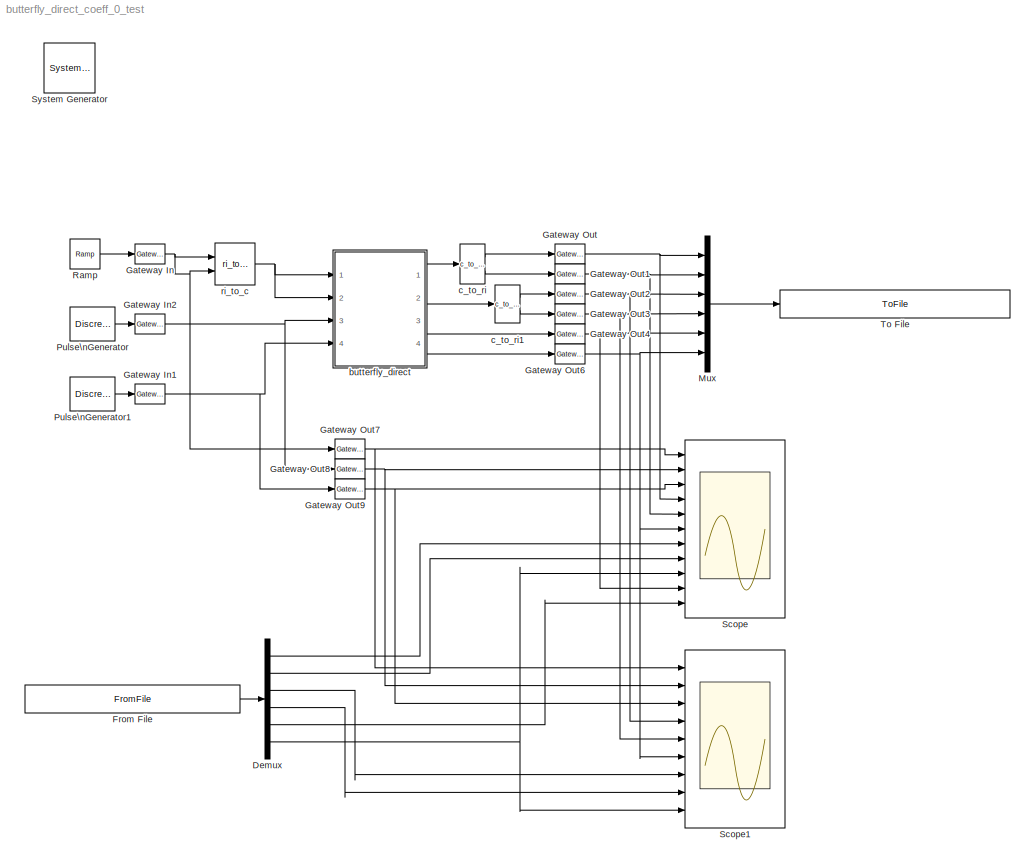
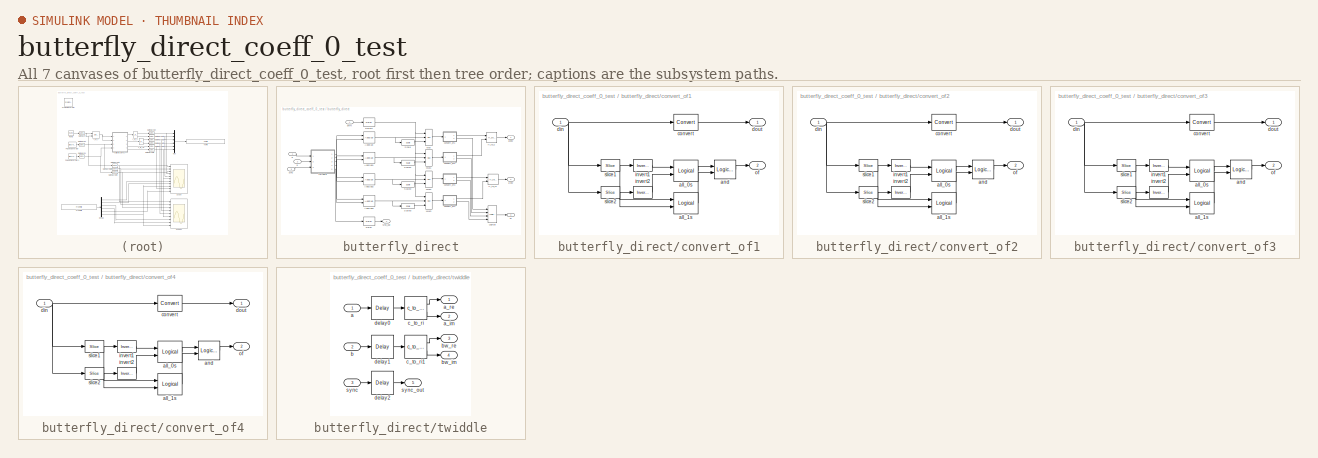
[diagram: thumbnail index - all 7 canvases of the model, root first then tree order]
MODEL butterfly_direct_coeff_0_test
KIND model
BLOCK [Reference]  System Generator  REF=xbsIndex_r4/ System Generator
  AttributesFormatString = System\\nGenerator
  FunctionWithSeparateData = off
  Ports = []
  RTWMemSecDataConstants = Inherit from model
  RTWMemSecDataInternal = Inherit from model
  RTWMemSecDataParameters = Inherit from model
  RTWMemSecFuncExecute = Inherit from model
  RTWMemSecFuncInitTerm = Inherit from model
  ShowPortLabels = FromPortIcon
  SourceBlock = xbsIndex_r4/ System Generator
  SourceType = Xilinx System Generator Block
  SystemSampleTime = -1
  Tag = genX
  UserData = DataTag0
  UserDataPersistent = on
  block_type = sysgen
  block_version = 10.1.1
  clock_wrapper = Clock Enables
  core_generation = According to Block Masks
  dbl_ovrd = According to Block Masks
  dcm_input_clock_period = 100
  deprecated_control = off
  directory = ./netlist
  eval_field = 0
  has_advanced_control = 0
  incr_netlist = off
  infoedit = System Generator
  package = ff668
  part = xc4vsx35
  run_coregen = off
  sg_icon_stat = 51,50,-1,-1,red,beige,0,07734,right
  sg_mask_display = fprintf('','COMMENT: begin icon graphics');\npatch([0 51 51 0 ],[0 0 50 50 ],[0.93 0.92 0.86]);\npatch([12 4 16 4 12 25 29 33 47 36 25 17 29 17 25 36 47 33 29 25 12 ],[5 13 25 37 45 45 41 45 45 34 45 37 25 13 5 16 5 5 9 5 5 ],[0.6 0.2 0.25]);\nplot([0 51 51 0 0 ],[0 0 50 50 0 ]);\nfprintf('','COMMENT: end icon graphics');\nfprintf('','COMMENT: begin icon text');\nfprintf('','COMMENT: end icon text...<+5ch>
  sggui_pos = -1,-1,-1,-1
  simulink_period = 1
  speed = -10
  synthesis_tool = XST
  sysclk_period = 100
  testbench = off
  trim_vbits = Everywhere in SubSystem
  xilinxfamily = Virtex4
BLOCK [Demux] Demux
  DisplayOption = bar
  Outputs = 6
  Ports = [1, 6]
BLOCK [FromFile] From File
  FileName = butterfly_direct_coeff_0_test_reference.mat
  SampleTime = 1
BLOCK [Reference] Gateway In  REF=xbsIndex_r4/Gateway In
  LOCs = {}
  Ports = [1, 1]
  SourceBlock = xbsIndex_r4/Gateway In
  SourceType = Xilinx Gateway In Block
  arith_type = Signed  (2's comp)
  bin_pt = 4
  block_type = gatewayin
  block_version = 10.1.1
  dbl_ovrd = off
  has_advanced_control = 0
  hdl_port = on
  infoedit = Gateway in block.  Converts inputs of type Simulink integer, double and fixed point to  Xilinx fixed point type.<P><P>Hardware notes:  In hardware these blocks become top level input ports.  <repeated x3 — deduplicated; at blocks: Gateway In, Gateway In1, Gateway In2>
  locs_specified = off
  n_bits = 5
  overflow = Wrap
  period = 1
  quantization = Truncate
  sg_icon_stat = 30,20,1,1,white,yellow,0,00d3666e,right,
  sg_mask_display = fprintf('','COMMENT: begin icon graphics');\npatch([0 1 1 0 ],[0 0 1 1 ],[0.95 0.93 0.65]);\npatch([0.3 0.2 0.366667 0.2 0.3 0.466667 0.5 0.533333 0.733333 0.6 0.466667 0.366667 0.533333 0.366667 0.466667 0.6 0.733333 0.533333 0.5 0.466667 0.3 ],[0.1 0.25 0.5 0.75 0.9 0.9 0.85 0.9 0.9 0.7 0.9 0.75 0.5 0.25 0.1 0.3 0.1 0.1 0.15 0.1 0.1 ],[0.98 0.96 0.92]);\nplot([0 1 1 0 0 ],[0 0 1 1 0 ]);\nfprintf...<+241ch>  <repeated x3 — deduplicated; at blocks: Gateway In, Gateway In1, Gateway In2>
  sggui_pos = 20,20,407,458
  timing_constraint = None
  xl_area = [0,0,0,0,0,0,0]
  xl_use_area = off
BLOCK [Reference] Gateway In1  REF=xbsIndex_r4/Gateway In
  LOCs = {}
  Ports = [1, 1]
  SourceBlock = xbsIndex_r4/Gateway In
  SourceType = Xilinx Gateway In Block
  arith_type = Boolean
  bin_pt = 14
  block_type = gatewayin
  block_version = 10.1.1
  dbl_ovrd = off
  has_advanced_control = 0
  hdl_port = on
  locs_specified = off
  n_bits = 16
  overflow = Saturate
  period = 1
  quantization = Round  (unbiased: +/- Inf)
  sg_icon_stat = 30,20,1,1,white,yellow,0,00d3666e,right,
  sggui_pos = 20,20,407,458
  timing_constraint = None
  xl_area = [0,0,0,0,0,0,0]
  xl_use_area = off
BLOCK [Reference] Gateway In2  REF=xbsIndex_r4/Gateway In
  LOCs = {}
  Ports = [1, 1]
  SourceBlock = xbsIndex_r4/Gateway In
  SourceType = Xilinx Gateway In Block
  arith_type = Boolean
  bin_pt = 14
  block_type = gatewayin
  block_version = 10.1.1
  dbl_ovrd = off
  has_advanced_control = 0
  hdl_port = on
  locs_specified = off
  n_bits = 16
  overflow = Saturate
  period = 1
  quantization = Round  (unbiased: +/- Inf)
  sg_icon_stat = 30,20,1,1,white,yellow,0,00d3666e,right,
  sggui_pos = 20,20,407,458
  timing_constraint = None
  xl_area = [0,0,0,0,0,0,0]
  xl_use_area = off
BLOCK [Reference] Gateway Out  REF=xbsIndex_r4/Gateway Out
  LOCs = {}
  Ports = [1, 1]
  SourceBlock = xbsIndex_r4/Gateway Out
  SourceType = Xilinx Gateway Out Block
  block_type = gatewayout
  block_version = 10.1.1
  has_advanced_control = 0
  hdl_port = on
  infoedit = Gateway out block.  Converts Xilinx fixed point inputs into ouputs of type Simulink integer, double, or fixed point.<P><P>Hardware notes:  In hardware these blocks become top level output ports or are discarded, depending on how they are configured.  <repeated x9 — deduplicated; at blocks: Gateway Out, Gateway Out1, Gateway Out2, Gateway Out3, Gateway Out4, Gateway Out6, Gateway Out7, Gateway Out8, Gateway Out9>
  locs_specified = off
  sg_icon_stat = 30,20,1,1,white,yellow,0,cc31b7ac,right,
  sg_mask_display = fprintf('','COMMENT: begin icon graphics');\npatch([0 1 1 0 ],[0 0 1 1 ],[0.95 0.93 0.65]);\npatch([0.3 0.2 0.366667 0.2 0.3 0.466667 0.5 0.533333 0.733333 0.6 0.466667 0.366667 0.533333 0.366667 0.466667 0.6 0.733333 0.533333 0.5 0.466667 0.3 ],[0.1 0.25 0.5 0.75 0.9 0.9 0.85 0.9 0.9 0.7 0.9 0.75 0.5 0.25 0.1 0.3 0.1 0.1 0.15 0.1 0.1 ],[0.98 0.96 0.92]);\nplot([0 1 1 0 0 ],[0 0 1 1 0 ]);\nfprintf...<+242ch>  <repeated x9 — deduplicated; at blocks: Gateway Out, Gateway Out1, Gateway Out2, Gateway Out3, Gateway Out4, Gateway Out6, Gateway Out7, Gateway Out8, Gateway Out9>
  sggui_pos = 20,20,389,431
  timing_constraint = None
  xl_area = [0,0,0,0,0,0,0]
  xl_use_area = off
BLOCK [Reference] Gateway Out1  REF=xbsIndex_r4/Gateway Out
  LOCs = {}
  Ports = [1, 1]
  SourceBlock = xbsIndex_r4/Gateway Out
  SourceType = Xilinx Gateway Out Block
  block_type = gatewayout
  block_version = 10.1.1
  has_advanced_control = 0
  hdl_port = on
  locs_specified = off
  sg_icon_stat = 30,20,1,1,white,yellow,0,cc31b7ac,right,
  sggui_pos = 20,20,389,431
  timing_constraint = None
  xl_area = [0,0,0,0,0,0,0]
  xl_use_area = off
BLOCK [Reference] Gateway Out2  REF=xbsIndex_r4/Gateway Out
  LOCs = {}
  Ports = [1, 1]
  SourceBlock = xbsIndex_r4/Gateway Out
  SourceType = Xilinx Gateway Out Block
  block_type = gatewayout
  block_version = 10.1.1
  has_advanced_control = 0
  hdl_port = on
  locs_specified = off
  sg_icon_stat = 30,20,1,1,white,yellow,0,cc31b7ac,right,
  sggui_pos = 20,20,389,431
  timing_constraint = None
  xl_area = [0,0,0,0,0,0,0]
  xl_use_area = off
BLOCK [Reference] Gateway Out3  REF=xbsIndex_r4/Gateway Out
  LOCs = {}
  Ports = [1, 1]
  SourceBlock = xbsIndex_r4/Gateway Out
  SourceType = Xilinx Gateway Out Block
  block_type = gatewayout
  block_version = 10.1.1
  has_advanced_control = 0
  hdl_port = on
  locs_specified = off
  sg_icon_stat = 30,20,1,1,white,yellow,0,cc31b7ac,right,
  sggui_pos = 20,20,389,431
  timing_constraint = None
  xl_area = [0,0,0,0,0,0,0]
  xl_use_area = off
BLOCK [Reference] Gateway Out4  REF=xbsIndex_r4/Gateway Out
  LOCs = {}
  Ports = [1, 1]
  SourceBlock = xbsIndex_r4/Gateway Out
  SourceType = Xilinx Gateway Out Block
  block_type = gatewayout
  block_version = 10.1.1
  has_advanced_control = 0
  hdl_port = on
  locs_specified = off
  sg_icon_stat = 30,20,1,1,white,yellow,0,cc31b7ac,right,
  sggui_pos = 20,20,389,431
  timing_constraint = None
  xl_area = [0,0,0,0,0,0,0]
  xl_use_area = off
BLOCK [Reference] Gateway Out6  REF=xbsIndex_r4/Gateway Out
  LOCs = {}
  Ports = [1, 1]
  SourceBlock = xbsIndex_r4/Gateway Out
  SourceType = Xilinx Gateway Out Block
  block_type = gatewayout
  block_version = 10.1.1
  has_advanced_control = 0
  hdl_port = on
  locs_specified = off
  sg_icon_stat = 30,20,1,1,white,yellow,0,cc31b7ac,right,
  sggui_pos = 20,20,389,431
  timing_constraint = None
  xl_area = [0,0,0,0,0,0,0]
  xl_use_area = off
BLOCK [Reference] Gateway Out7  REF=xbsIndex_r4/Gateway Out
  LOCs = {}
  Ports = [1, 1]
  SourceBlock = xbsIndex_r4/Gateway Out
  SourceType = Xilinx Gateway Out Block
  block_type = gatewayout
  block_version = 10.1.1
  has_advanced_control = 0
  hdl_port = on
  locs_specified = off
  sg_icon_stat = 30,20,1,1,white,yellow,0,cc31b7ac,right,
  sggui_pos = 20,20,389,431
  timing_constraint = None
  xl_area = [0,0,0,0,0,0,0]
  xl_use_area = off
BLOCK [Reference] Gateway Out8  REF=xbsIndex_r4/Gateway Out
  LOCs = {}
  Ports = [1, 1]
  SourceBlock = xbsIndex_r4/Gateway Out
  SourceType = Xilinx Gateway Out Block
  block_type = gatewayout
  block_version = 10.1.1
  has_advanced_control = 0
  hdl_port = on
  locs_specified = off
  sg_icon_stat = 30,20,1,1,white,yellow,0,cc31b7ac,right,
  sggui_pos = 20,20,389,431
  timing_constraint = None
  xl_area = [0,0,0,0,0,0,0]
  xl_use_area = off
BLOCK [Reference] Gateway Out9  REF=xbsIndex_r4/Gateway Out
  LOCs = {}
  Ports = [1, 1]
  SourceBlock = xbsIndex_r4/Gateway Out
  SourceType = Xilinx Gateway Out Block
  block_type = gatewayout
  block_version = 10.1.1
  has_advanced_control = 0
  hdl_port = on
  locs_specified = off
  sg_icon_stat = 30,20,1,1,white,yellow,0,cc31b7ac,right,
  sggui_pos = 20,20,389,431
  timing_constraint = None
  xl_area = [0,0,0,0,0,0,0]
  xl_use_area = off
BLOCK [Mux] Mux
  DisplayOption = bar
  Inputs = 6
  Ports = [6, 1]
BLOCK [DiscretePulseGenerator] Pulse\nGenerator
  Period = 32*4
  PhaseDelay = 11
  Ports = [0, 1]
BLOCK [DiscretePulseGenerator] Pulse\nGenerator1
  Period = 32*4
  PhaseDelay = 33
  Ports = [0, 1]
  PulseWidth = 32*3
BLOCK [Reference] Ramp  REF=simulink/Sources/Ramp
  FunctionWithSeparateData = off
  Ports = [0, 1]
  RTWMemSecDataConstants = Inherit from model
  RTWMemSecDataInternal = Inherit from model
  RTWMemSecDataParameters = Inherit from model
  RTWMemSecFuncExecute = Inherit from model
  RTWMemSecFuncInitTerm = Inherit from model
  ShowPortLabels = FromPortIcon
  SourceBlock = simulink/Sources/Ramp
  SourceType = Ramp
  SystemSampleTime = -1
  VectorParams1D = on
  X0 = 0
  slope = 1/32
  start = 0
BLOCK [Scope] Scope
  DataFormat = StructureWithTime
  Floating = off
  NumInputPorts = 11
  Ports = [11]
  SampleTime = 0
  YMax = 5~5~5~5~5~5~5~5~5~5~5
  YMin = -5~-5~-5~-5~-5~-5~-5~-5~-5~-5~-5
  ZoomMode = xonly
BLOCK [Scope] Scope1
  DataFormat = StructureWithTime
  Floating = off
  NumInputPorts = 9
  Ports = [9]
  SampleTime = 0
  SaveName = ScopeData1
  YMax = 5~5~5~5~5~5~5~5~5
  YMin = -5~-5~-5~-5~-5~-5~-5~-5~-5
BLOCK [ToFile] To File
  Filename = butterfly_direct_coeff_0_test_output.mat
  MatrixName = output
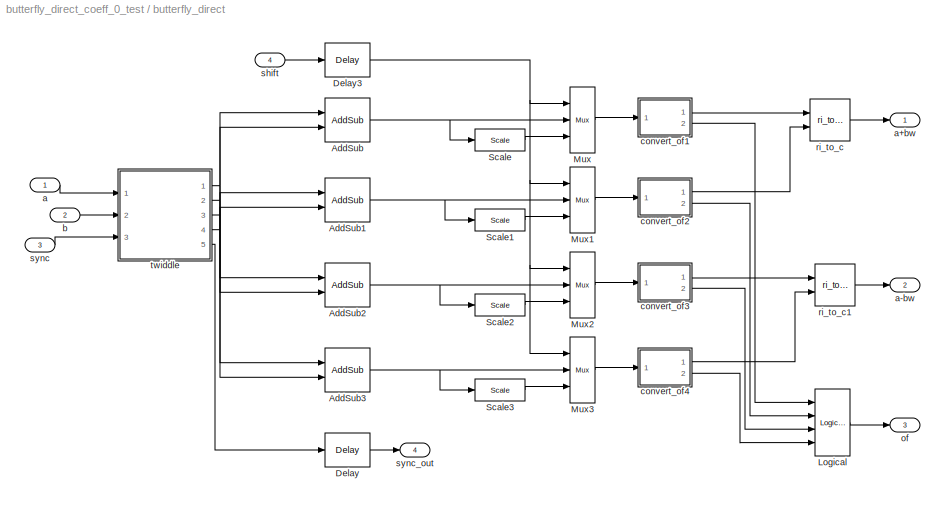
BLOCK [SubSystem] butterfly_direct
  AncestorBlock = casper_library_ffts/butterfly_direct
  AttributesFormatString = twiddle_coeff_0\ncoeffs in slices
  FunctionWithSeparateData = off
  MaskCallbackString = ||%coeffs = eval(get_param(gcb,'Coeffs'));\n%visibs = get_param(gcb,'MaskVisibilities');\n%if length(coeffs) == 1,\n%    visibs{4} = 'off'; visibs{5} = 'off';\n%    visibs{6} = 'off'; \n%else\n%    visibs{4} = 'on';\n%    visibs{5} = 'on'; visibs{6} = 'on';\n%end    \n%set_param(gcb, 'MaskVisibilities', visibs);|%coeffs = eval(get_param(gcb,'Coeffs'));\n%visibs = get_param(gcb,'MaskVisibilities');...<+812ch>
  MaskEnableString = on,on,on,on,on,on,on,on,on,on,on,on,on,on,on,on,on,on
  MaskHideContents = off
  MaskIconFrame = on
  MaskIconOpaque = on
  MaskIconRotate = none
  MaskIconUnits = autoscale
  MaskInitialization = butterfly_direct_init(gcb,...\n              'biplex', biplex,...\n              'FFTSize', FFTSize,...\n              'Coeffs', Coeffs,...\n              'coeff_bit_width', coeff_bit_width,...\n              'StepPeriod', StepPeriod,...\n              'input_bit_width', input_bit_width,...\n              'add_latency', add_latency,...\n              'mult_latency', mult_latency,...\n             ...<+428ch>
  MaskPromptString = Used in biplex FFT|Size of FFT: (2^?)|Coefficients: (0 to 2^(FFTSize-1)-1)|Coefficient Step Period: (2^?)|Implement coefficients in BRAM|Coefficient Bit Width|Input/Output Bit Width:|BRAM Latency|Add Latency|Mult Latency|Convert latency|Quantization Behavior|Overflow Behavior|Architecture|Use less|Use behavioural HDL for multipliers|Use embedded multipliers|Use DSP48s for adders
  MaskSelfModifiable = on
  MaskStyleString = checkbox,edit,edit,edit,checkbox,edit,edit,edit,edit,edit,edit,popup(Truncate|Round  (unbiased: +/- Inf)|Round  (unbiased: Even Values)),popup(Wrap|Saturate|Error),popup(Virtex2Pro|Virtex5),popup(logic|multipliers),checkbox,checkbox,checkbox
  MaskTabNameString = ,,,,,,,,,,,,,,,,,
  MaskToolTipString = on,on,on,on,on,on,on,on,on,on,on,on,on,on,on,on,on,on
  MaskTunableValueString = on,on,on,on,on,on,on,on,on,on,on,on,on,on,on,on,on,on
  MaskType = butterfly_direct
  MaskValueString = off|5|0|0|off|5|5|2|2|3|1|Round  (unbiased: +/- Inf)|Saturate|Virtex2Pro|multipliers|on|off|off
  MaskVarAliasString = ,,,,,,,,,,,,,,,,,
  MaskVariables = biplex=&1;FFTSize=@2;Coeffs=@3;StepPeriod=@4;coeffs_bram=&5;coeff_bit_width=@6;input_bit_width=@7;bram_latency=@8;add_latency=@9;mult_latency=@10;conv_latency=@11;quantization=&12;overflow=&13;arch=&14;opt_target=&15;use_hdl=&16;use_embedded=&17;dsp48_adders=&18;
  MaskVisibilityString = off,on,on,on,on,on,on,on,on,on,on,on,on,on,on,on,off,on
  MinAlgLoopOccurrences = off
  Opaque = off
  Ports = [4, 4]
  PropExecContextOutsideSubsystem = off
  RTWSystemCode = Auto
  RequestExecContextInheritance = off
  UserData = DataTag1
  UserDataPersistent = on
BLOCK [Reference] butterfly_direct/AddSub  REF=xbsIndex_r4/AddSub
  Ports = [2, 1]
  SourceBlock = xbsIndex_r4/AddSub
  SourceType = Xilinx Adder/Subtracter Block
  arith_type = Unsigned
  bin_pt = 2
  block_type = addsub
  block_version = 9.1.01
  dbl_ovrd = off
  en = off
  has_advanced_control = 0
  hw_selection = DSP48
  latency = add_latency
  mode = Addition
  n_bits = 8
  overflow = Wrap
  pipelined = on
  precision = Full
  quantization = Truncate
  sg_icon_stat = 45,44,2,1,white,blue,0,4922a24f,right,
  sg_mask_display = fprintf('','COMMENT: begin icon graphics');\npatch([0 1 1 0 ],[0 0 1 1 ],[0.77 0.82 0.91]);\npatch([0.222222 0.0666667 0.288889 0.0666667 0.222222 0.488889 0.555556 0.622222 0.888889 0.666667 0.466667 0.311111 0.511111 0.311111 0.466667 0.666667 0.888889 0.622222 0.555556 0.488889 0.222222 ],[0.113636 0.272727 0.5 0.727273 0.886364 0.886364 0.818182 0.886364 0.886364 0.659091 0.863636 0.704545 0.5...<+478ch>  <repeated x4 — deduplicated; at blocks: AddSub, AddSub1, AddSub2, AddSub3>
  sggui_pos = 827,219,348,344
  use_behavioral_HDL = on
  use_carryin = off
  use_carryout = off
  use_rpm = on
  xl_area = [0, 0, 0, 0, 0, 0, 0]
  xl_use_area = off
BLOCK [Reference] butterfly_direct/AddSub1  REF=xbsIndex_r4/AddSub
  Ports = [2, 1]
  SourceBlock = xbsIndex_r4/AddSub
  SourceType = Xilinx Adder/Subtracter Block
  arith_type = Unsigned
  bin_pt = 2
  block_type = addsub
  block_version = 9.1.01
  dbl_ovrd = off
  en = off
  has_advanced_control = 0
  hw_selection = DSP48
  latency = add_latency
  mode = Addition
  n_bits = 8
  overflow = Wrap
  pipelined = on
  precision = Full
  quantization = Truncate
  sg_icon_stat = 45,44,2,1,white,blue,0,4922a24f,right,
  sggui_pos = 20,20,348,342
  use_behavioral_HDL = on
  use_carryin = off
  use_carryout = off
  use_rpm = on
  xl_area = [0, 0, 0, 0, 0, 0, 0]
  xl_use_area = off
BLOCK [Reference] butterfly_direct/AddSub2  REF=xbsIndex_r4/AddSub
  Ports = [2, 1]
  SourceBlock = xbsIndex_r4/AddSub
  SourceType = Xilinx Adder/Subtracter Block
  arith_type = Unsigned
  bin_pt = 2
  block_type = addsub
  block_version = 9.1.01
  dbl_ovrd = off
  en = off
  has_advanced_control = 0
  hw_selection = DSP48
  latency = add_latency
  mode = Subtraction
  n_bits = 8
  overflow = Wrap
  pipelined = on
  precision = Full
  quantization = Truncate
  sg_icon_stat = 45,44,2,1,white,blue,0,57a258cf,right,
  sggui_pos = 20,20,348,342
  use_behavioral_HDL = on
  use_carryin = off
  use_carryout = off
  use_rpm = on
  xl_area = [0, 0, 0, 0, 0, 0, 0]
  xl_use_area = off
BLOCK [Reference] butterfly_direct/AddSub3  REF=xbsIndex_r4/AddSub
  Ports = [2, 1]
  SourceBlock = xbsIndex_r4/AddSub
  SourceType = Xilinx Adder/Subtracter Block
  arith_type = Unsigned
  bin_pt = 2
  block_type = addsub
  block_version = 9.1.01
  dbl_ovrd = off
  en = off
  has_advanced_control = 0
  hw_selection = DSP48
  latency = add_latency
  mode = Subtraction
  n_bits = 8
  overflow = Wrap
  pipelined = on
  precision = Full
  quantization = Truncate
  sg_icon_stat = 45,44,2,1,white,blue,0,57a258cf,right,
  sggui_pos = -1,-1,-1,-1
  use_behavioral_HDL = on
  use_carryin = off
  use_carryout = off
  use_rpm = on
  xl_area = [0, 0, 0, 0, 0, 0, 0]
  xl_use_area = off
BLOCK [Reference] butterfly_direct/Delay  REF=xbsIndex_r4/Delay
  Ports = [1, 1]
  SourceBlock = xbsIndex_r4/Delay
  SourceType = Xilinx Delay Block
  block_type = delay
  block_version = 9.1.01
  dbl_ovrd = off
  en = off
  has_advanced_control = 0
  infoedit = Hardware notes: A delay line is a chain, each link of which is an SRL16 followed by a flip-flop.
  latency = add_latency + conv_latency + 1
  reg_retiming = on
  sg_icon_stat = 45,34,1,1,white,blue,0,d390c2d8,right,
  sg_mask_display = fprintf('','COMMENT: begin icon graphics');\npatch([0 1 1 0 ],[0 0 1 1 ],[0.77 0.82 0.91]);\npatch([0.311111 0.177778 0.355556 0.177778 0.311111 0.511111 0.555556 0.6 0.822222 0.644444 0.488889 0.377778 0.555556 0.377778 0.488889 0.644444 0.822222 0.6 0.555556 0.511111 0.311111 ],[0.117647 0.294118 0.529412 0.764706 0.941176 0.941176 0.882353 0.941176 0.941176 0.705882 0.911765 0.764706 0.529412 0...<+297ch>
  sggui_pos = 23,105,419,315
  xl_area = [0, 0, 0, 0, 0, 0, 0]
  xl_use_area = off
BLOCK [Reference] butterfly_direct/Delay3  REF=xbsIndex_r4/Delay
  Ports = [1, 1]
  SourceBlock = xbsIndex_r4/Delay
  SourceType = Xilinx Delay Block
  block_type = delay
  block_version = 9.1.01
  dbl_ovrd = off
  en = off
  has_advanced_control = 0
  infoedit = Hardware notes: A delay line is a chain, each link of which is an SRL16 followed by a flip-flop.
  latency = add_latency
  reg_retiming = off
  sg_icon_stat = 45,34,1,1,white,blue,0,85ce9542,right,
  sg_mask_display = fprintf('','COMMENT: begin icon graphics');\npatch([0 1 1 0 ],[0 0 1 1 ],[0.77 0.82 0.91]);\npatch([0.311111 0.177778 0.355556 0.177778 0.311111 0.511111 0.555556 0.6 0.822222 0.644444 0.488889 0.377778 0.555556 0.377778 0.488889 0.644444 0.822222 0.6 0.555556 0.511111 0.311111 ],[0.117647 0.294118 0.529412 0.764706 0.941176 0.941176 0.882353 0.941176 0.941176 0.705882 0.911765 0.764706 0.529412 0...<+297ch>
  sggui_pos = 20,20,407,280
  xl_area = [0, 0, 0, 0, 0, 0, 0]
  xl_use_area = off
BLOCK [Reference] butterfly_direct/Logical  REF=xbsIndex_r4/Logical
  Ports = [4, 1]
  SourceBlock = xbsIndex_r4/Logical
  SourceType = Xilinx Logical Block Block
  align_bp = on
  arith_type = Unsigned
  bin_pt = 0
  block_type = logical
  block_version = 10.1.1
  dbl_ovrd = off
  en = off
  has_advanced_control = 0
  inputs = 4
  latency = 0
  logical_function = OR
  n_bits = 16
  precision = Full
  sg_icon_stat = 35,67,4,1,white,blue,0,96d3e8c1,right,
  sg_list_contents = {'table'=>{'logical_function'=>'popup(AND|NAND|OR|NOR|XOR|XNOR)','userSelections'=>{'logical_function'=>'OR'}}}
  sg_mask_display = fprintf('','COMMENT: begin icon graphics');\npatch([0 1 1 0 ],[0 0 1 1 ],[0.77 0.82 0.91]);\npatch([0.228571 0.0571429 0.285714 0.0571429 0.228571 0.485714 0.571429 0.657143 0.942857 0.714286 0.514286 0.371429 0.6 0.371429 0.514286 0.714286 0.942857 0.657143 0.571429 0.485714 0.228571 ],[0.298507 0.38806 0.507463 0.626866 0.716418 0.716418 0.671642 0.716418 0.716418 0.597015 0.701493 0.626866 0.50...<+321ch>
  sggui_pos = 21,51,419,291
  xl_area = [0,0,0,0,0,0,0]
  xl_use_area = off
BLOCK [Reference] butterfly_direct/Mux  REF=xbsIndex_r4/Mux
  Ports = [3, 1]
  SourceBlock = xbsIndex_r4/Mux
  SourceType = Xilinx Bus Multiplexer Block
  arith_type = Signed  (2's comp)
  bin_pt = 2
  block_type = mux
  block_version = 9.1.01
  dbl_ovrd = off
  en = off
  has_advanced_control = 0
  inputs = 2
  latency = 1
  n_bits = 8
  overflow = Wrap
  precision = Full
  quantization = Truncate
  sg_icon_stat = 25,66,3,1,white,blue,3,a150fb03,right,
  sg_mask_display = fprintf('','COMMENT: begin icon graphics');\npatch([0 1 1 0 ],[0 0.142857 0.857143 1 ],[0.77 0.82 0.91]);\npatch([0.24 0.08 0.32 0.08 0.24 0.52 0.6 0.68 0.96 0.72 0.52 0.36 0.56 0.36 0.52 0.72 0.96 0.68 0.6 0.52 0.24 ],[0.348485 0.409091 0.5 0.590909 0.651515 0.651515 0.621212 0.651515 0.651515 0.560606 0.636364 0.575758 0.5 0.424242 0.363636 0.439394 0.348485 0.348485 0.378788 0.348485 0.348485 ]...<+380ch>  <repeated x4 — deduplicated; at blocks: Mux, Mux1, Mux2, Mux3>
  sggui_pos = 20,20,348,306
  xl_area = [0, 0, 0, 0, 0, 0, 0]
  xl_use_area = off
BLOCK [Reference] butterfly_direct/Mux1  REF=xbsIndex_r4/Mux
  Ports = [3, 1]
  SourceBlock = xbsIndex_r4/Mux
  SourceType = Xilinx Bus Multiplexer Block
  arith_type = Signed  (2's comp)
  bin_pt = 2
  block_type = mux
  block_version = 9.1.01
  dbl_ovrd = off
  en = off
  has_advanced_control = 0
  inputs = 2
  latency = 1
  n_bits = 8
  overflow = Wrap
  precision = Full
  quantization = Truncate
  sg_icon_stat = 25,66,3,1,white,blue,3,a150fb03,right,
  sggui_pos = 20,20,407,344
  xl_area = [0, 0, 0, 0, 0, 0, 0]
  xl_use_area = off
BLOCK [Reference] butterfly_direct/Mux2  REF=xbsIndex_r4/Mux
  Ports = [3, 1]
  SourceBlock = xbsIndex_r4/Mux
  SourceType = Xilinx Bus Multiplexer Block
  arith_type = Signed  (2's comp)
  bin_pt = 2
  block_type = mux
  block_version = 9.1.01
  dbl_ovrd = off
  en = off
  has_advanced_control = 0
  inputs = 2
  latency = 1
  n_bits = 8
  overflow = Wrap
  precision = Full
  quantization = Truncate
  sg_icon_stat = 25,66,3,1,white,blue,3,a150fb03,right,
  sggui_pos = 20,20,407,344
  xl_area = [0, 0, 0, 0, 0, 0, 0]
  xl_use_area = off
BLOCK [Reference] butterfly_direct/Mux3  REF=xbsIndex_r4/Mux
  Ports = [3, 1]
  SourceBlock = xbsIndex_r4/Mux
  SourceType = Xilinx Bus Multiplexer Block
  arith_type = Signed  (2's comp)
  bin_pt = 2
  block_type = mux
  block_version = 9.1.01
  dbl_ovrd = off
  en = off
  has_advanced_control = 0
  inputs = 2
  latency = 1
  n_bits = 8
  overflow = Wrap
  precision = Full
  quantization = Truncate
  sg_icon_stat = 25,66,3,1,white,blue,3,a150fb03,right,
  sggui_pos = 20,20,407,344
  xl_area = [0, 0, 0, 0, 0, 0, 0]
  xl_use_area = off
BLOCK [Reference] butterfly_direct/Scale  REF=xbsIndex_r4/Scale
  Ports = [1, 1]
  SourceBlock = xbsIndex_r4/Scale
  SourceType = Xilinx Input Scaler Block
  block_type = scale
  block_version = 9.1.01
  dbl_ovrd = off
  has_advanced_control = 0
  infoedit = Scales input by a power of two by adjusting the binary point position.<P><P>Hardware notes: In hardware this block costs nothing.
  scale_factor = -1
  sg_icon_stat = 50,22,1,1,white,blue,0,315b7d78,right,
  sg_mask_display = fprintf('','COMMENT: begin icon graphics');\npatch([0 1 1 0 ],[0 0 1 1 ],[0.77 0.82 0.91]);\npatch([0.38 0.3 0.4 0.3 0.38 0.5 0.54 0.58 0.7 0.6 0.5 0.44 0.56 0.44 0.5 0.6 0.7 0.58 0.54 0.5 0.38 ],[0.0909091 0.272727 0.5 0.727273 0.909091 0.909091 0.818182 0.909091 0.909091 0.681818 0.909091 0.772727 0.5 0.227273 0.0909091 0.318182 0.0909091 0.0909091 0.181818 0.0909091 0.0909091 ],[0.98 0.96 0.92]...<+214ch>  <repeated x4 — deduplicated; at blocks: Scale, Scale1, Scale2, Scale3>
  sggui_pos = -1,-1,-1,-1
BLOCK [Reference] butterfly_direct/Scale1  REF=xbsIndex_r4/Scale
  Ports = [1, 1]
  SourceBlock = xbsIndex_r4/Scale
  SourceType = Xilinx Input Scaler Block
  block_type = scale
  block_version = 9.1.01
  dbl_ovrd = off
  has_advanced_control = 0
  infoedit = Scales input by a power of two by adjusting the binary point position.<P><P>Hardware notes: In hardware this block costs nothing.
  scale_factor = -1
  sg_icon_stat = 50,22,1,1,white,blue,0,315b7d78,right,
  sggui_pos = -1,-1,-1,-1
BLOCK [Reference] butterfly_direct/Scale2  REF=xbsIndex_r4/Scale
  Ports = [1, 1]
  SourceBlock = xbsIndex_r4/Scale
  SourceType = Xilinx Input Scaler Block
  block_type = scale
  block_version = 9.1.01
  dbl_ovrd = off
  has_advanced_control = 0
  infoedit = Scales input by a power of two by adjusting the binary point position.<P><P>Hardware notes: In hardware this block costs nothing.
  scale_factor = -1
  sg_icon_stat = 50,22,1,1,white,blue,0,315b7d78,right,
  sggui_pos = -1,-1,-1,-1
BLOCK [Reference] butterfly_direct/Scale3  REF=xbsIndex_r4/Scale
  Ports = [1, 1]
  SourceBlock = xbsIndex_r4/Scale
  SourceType = Xilinx Input Scaler Block
  block_type = scale
  block_version = 9.1.01
  dbl_ovrd = off
  has_advanced_control = 0
  infoedit = Scales input by a power of two by adjusting the binary point position.<P><P>Hardware notes: In hardware this block costs nothing.
  scale_factor = -1
  sg_icon_stat = 50,22,1,1,white,blue,0,315b7d78,right,
  sggui_pos = -1,-1,-1,-1
BLOCK [Inport] butterfly_direct/a
  IconDisplay = Port number
  OutDataType = sfix(16)
  OutScaling = 2^0
BLOCK [Outport] butterfly_direct/a+bw
  IconDisplay = Port number
  OutDataType = sfix(16)
  OutScaling = 2^0
BLOCK [Outport] butterfly_direct/a-bw
  IconDisplay = Port number
  OutDataType = sfix(16)
  OutScaling = 2^0
  Port = 2
BLOCK [Inport] butterfly_direct/b
  IconDisplay = Port number
  OutDataType = sfix(16)
  OutScaling = 2^0
  Port = 2
BLOCK [SubSystem] butterfly_direct/convert_of1
  AncestorBlock = casper_library_misc/convert_of
  AttributesFormatString = [7,5]->[5,4]
  FunctionWithSeparateData = off
  MaskCallbackString = ||||||
  MaskDescription = Converts from one 2's complement bit-width \nand/or binary point position to another. \nIncludes underflow/overflow indicator.
  MaskEnableString = on,on,on,on,on,on,on
  MaskHideContents = off
  MaskIconFrame = on
  MaskIconOpaque = on
  MaskIconRotate = none
  MaskIconUnits = autoscale
  MaskInitialization = convert_of_init(gcb, ...\n    'bit_width_i', bit_width_i, ...\n    'binary_point_i', binary_point_i, ...\n    'bit_width_o', bit_width_o, ...\n    'binary_point_o', binary_point_o, ...\n    'latency', latency, ...\n    'overflow', overflow, ...\n    'quantization', quantization);\n  <repeated x4 — deduplicated; at blocks: convert_of1, convert_of2, convert_of3, convert_of4>
  MaskPromptString = Bit Width In|Binary Point In|Bit Width Out|Binary Point Out|Latency|Overflow Behaviour|Quantization Behaviour
  MaskStyleString = edit,edit,edit,edit,edit,popup(Wrap|Saturate|Error),popup(Truncate|Round  (unbiased: +/- Inf)|Round  (unbiased: even values))
  MaskTabNameString = ,,,,,,
  MaskToolTipString = on,on,on,on,on,on,on
  MaskTunableValueString = on,on,on,on,on,on,on
  MaskType = convert_of
  MaskValueString = 7|5|5|4|1|Saturate|Round  (unbiased: +/- Inf)
  MaskVarAliasString = ,,,,,,
  MaskVariables = bit_width_i=@1;binary_point_i=@2;bit_width_o=@3;binary_point_o=@4;latency=@5;overflow=&6;quantization=&7;
  MaskVisibilityString = on,on,on,on,on,on,on
  MinAlgLoopOccurrences = off
  Opaque = off
  Ports = [1, 2]
  PropExecContextOutsideSubsystem = off
  RTWSystemCode = Auto
  RequestExecContextInheritance = off
  UserData = DataTag2
  UserDataPersistent = on
BLOCK [Reference] butterfly_direct/convert_of1/all_0s  REF=xbsIndex_r4/Logical
  Ports = [2, 1]
  SourceBlock = xbsIndex_r4/Logical
  SourceType = Xilinx Logical Block Block
  align_bp = on
  arith_type = Unsigned
  bin_pt = 0
  block_type = logical
  block_version = 10.1.3
  dbl_ovrd = off
  en = off
  has_advanced_control = 0
  inputs = 2
  latency = latency
  logical_function = NAND
  n_bits = 16
  precision = Full
  sg_icon_stat = 45,40,2,1,white,blue,0,410b047c,right,
  sg_mask_display = fprintf('','COMMENT: begin icon graphics');\npatch([0 1 1 0 ],[0 0 1 1 ],[0.77 0.82 0.91]);\npatch([0.266667 0.111111 0.311111 0.111111 0.266667 0.511111 0.577778 0.644444 0.888889 0.688889 0.488889 0.355556 0.577778 0.355556 0.488889 0.688889 0.888889 0.644444 0.577778 0.511111 0.266667 ],[0.1 0.275 0.5 0.725 0.9 0.9 0.825 0.9 0.9 0.675 0.9 0.75 0.5 0.25 0.1 0.325 0.1 0.1 0.175 0.1 0.1 ],[0.98 0....<+238ch>  <repeated x8 — deduplicated; at blocks: all_0s, all_1s>
  sggui_pos = -1,-1,-1,-1
  xl_area = [0,0,0,0,0,0,0]
  xl_use_area = off
BLOCK [Reference] butterfly_direct/convert_of1/all_1s  REF=xbsIndex_r4/Logical
  Ports = [2, 1]
  SourceBlock = xbsIndex_r4/Logical
  SourceType = Xilinx Logical Block Block
  align_bp = on
  arith_type = Unsigned
  bin_pt = 0
  block_type = logical
  block_version = 10.1.3
  dbl_ovrd = off
  en = off
  has_advanced_control = 0
  inputs = 2
  latency = latency
  logical_function = NAND
  n_bits = 16
  precision = Full
  sg_icon_stat = 45,40,2,1,white,blue,0,410b047c,right,
  sggui_pos = -1,-1,-1,-1
  xl_area = [0,0,0,0,0,0,0]
  xl_use_area = off
BLOCK [Reference] butterfly_direct/convert_of1/and  REF=xbsIndex_r4/Logical
  Ports = [2, 1]
  SourceBlock = xbsIndex_r4/Logical
  SourceType = Xilinx Logical Block Block
  align_bp = on
  arith_type = Unsigned
  bin_pt = 0
  block_type = logical
  block_version = 10.1.3
  dbl_ovrd = off
  en = off
  has_advanced_control = 0
  inputs = 2
  latency = 0
  logical_function = AND
  n_bits = 16
  precision = Full
  sg_icon_stat = 40,35,2,1,white,blue,0,0a851f85,right,
  sg_mask_display = fprintf('','COMMENT: begin icon graphics');\npatch([0 1 1 0 ],[0 0 1 1 ],[0.77 0.82 0.91]);\npatch([0.275 0.125 0.325 0.125 0.275 0.5 0.575 0.65 0.9 0.7 0.525 0.4 0.6 0.4 0.525 0.7 0.9 0.65 0.575 0.5 0.275 ],[0.114286 0.285714 0.514286 0.742857 0.914286 0.914286 0.828571 0.914286 0.914286 0.685714 0.885714 0.742857 0.514286 0.285714 0.142857 0.342857 0.114286 0.114286 0.2 0.114286 0.114286 ],[0.98...<+240ch>  <repeated x4 — deduplicated; at blocks: and>
  sggui_pos = -1,-1,-1,-1
  xl_area = [0,0,0,0,0,0,0]
  xl_use_area = off
BLOCK [Reference] butterfly_direct/convert_of1/convert  REF=xbsIndex_r4/Convert
  Ports = [1, 1]
  SourceBlock = xbsIndex_r4/Convert
  SourceType = Xilinx Type Converter Block
  arith_type = Signed  (2's comp)
  bin_pt = binary_point_o
  block_type = convert
  block_version = 10.1.1
  dbl_ovrd = off
  has_advanced_control = 0
  infoedit = Hardware notes: rounding and saturating require hardware resources; truncating and wrapping do not.
  latency = latency
  n_bits = bit_width_o
  overflow = Saturate
  pipeline = on
  quantization = Round  (unbiased: +/- Inf)
  sg_icon_stat = 45,30,1,1,white,blue,0,d6ffdbcd,right,
  sg_mask_display = fprintf('','COMMENT: begin icon graphics');\npatch([0 1 1 0 ],[0 0 1 1 ],[0.77 0.82 0.91]);\npatch([0.333333 0.222222 0.377778 0.222222 0.333333 0.511111 0.555556 0.6 0.777778 0.622222 0.488889 0.377778 0.511111 0.377778 0.488889 0.622222 0.777778 0.6 0.555556 0.511111 0.333333 ],[0.1 0.266667 0.5 0.733333 0.9 0.9 0.833333 0.9 0.9 0.666667 0.866667 0.7 0.5 0.3 0.133333 0.333333 0.1 0.1 0.166667 0....<+288ch>  <repeated x4 — deduplicated; at blocks: convert>
  sggui_pos = 20,20,538,377
  xl_area = [0,0,0,0,0,0,0]
  xl_use_area = off
BLOCK [Inport] butterfly_direct/convert_of1/din
  IconDisplay = Port number
  OutDataType = sfix(16)
  OutScaling = 2^0
BLOCK [Outport] butterfly_direct/convert_of1/dout
  IconDisplay = Port number
BLOCK [Reference] butterfly_direct/convert_of1/invert1  REF=xbsIndex_r4/Inverter
  Ports = [1, 1]
  SourceBlock = xbsIndex_r4/Inverter
  SourceType = Xilinx Inverter Block
  block_type = inv
  block_version = 10.1.3
  dbl_ovrd = off
  en = off
  has_advanced_control = 0
  infoedit = Bitwise logical negation (one's complement) operator.
  latency = 0
  sg_icon_stat = 35,22,1,1,white,blue,0,267846e5,right,
  sg_mask_display = fprintf('','COMMENT: begin icon graphics');\npatch([0 1 1 0 ],[0 0 1 1 ],[0.77 0.82 0.91]);\npatch([0.342857 0.228571 0.371429 0.228571 0.342857 0.514286 0.571429 0.628571 0.8 0.657143 0.514286 0.428571 0.6 0.428571 0.514286 0.657143 0.8 0.628571 0.571429 0.514286 0.342857 ],[0.0909091 0.272727 0.5 0.727273 0.909091 0.909091 0.818182 0.909091 0.909091 0.681818 0.909091 0.772727 0.5 0.227273 0.0909...<+270ch>  <repeated x8 — deduplicated; at blocks: invert1, invert2>
  sggui_pos = -1,-1,-1,-1
  xl_area = [0,0,0,0,0,0,0]
  xl_use_area = off
BLOCK [Reference] butterfly_direct/convert_of1/invert2  REF=xbsIndex_r4/Inverter
  Ports = [1, 1]
  SourceBlock = xbsIndex_r4/Inverter
  SourceType = Xilinx Inverter Block
  block_type = inv
  block_version = 10.1.3
  dbl_ovrd = off
  en = off
  has_advanced_control = 0
  infoedit = Bitwise logical negation (one's complement) operator.
  latency = 0
  sg_icon_stat = 35,22,1,1,white,blue,0,267846e5,right,
  sggui_pos = -1,-1,-1,-1
  xl_area = [0,0,0,0,0,0,0]
  xl_use_area = off
BLOCK [Outport] butterfly_direct/convert_of1/of
  IconDisplay = Port number
  Port = 2
BLOCK [Reference] butterfly_direct/convert_of1/slice1  REF=xbsIndex_r4/Slice
  Ports = [1, 1]
  SourceBlock = xbsIndex_r4/Slice
  SourceType = Xilinx Bit Slice Extractor Block
  base0 = LSB of Input
  base1 = MSB of Input
  bit0 = 0
  bit1 = 0
  block_type = slice
  block_version = 10.1.3
  boolean_output = on
  dbl_ovrd = off
  has_advanced_control = 0
  infoedit = Extracts a given range of bits from each input sample and presents it at the output.  The output type is ordinarily unsigned with binary point at zero, but can be Boolean when the slice is one bit wide.<P><P>Hardware notes: In hardware this block costs nothing.  <repeated x8 — deduplicated; at blocks: slice1, slice2>
  mode = Upper Bit Location + Width
  nbits = 1
  sg_icon_stat = 35,22,1,1,white,blue,0,1fd851a7,right,
  sg_mask_display = fprintf('','COMMENT: begin icon graphics');\npatch([0 1 1 0 ],[0 0 1 1 ],[0.77 0.82 0.91]);\npatch([0.342857 0.228571 0.371429 0.228571 0.342857 0.514286 0.571429 0.628571 0.8 0.657143 0.514286 0.428571 0.6 0.428571 0.514286 0.657143 0.8 0.628571 0.571429 0.514286 0.342857 ],[0.0909091 0.272727 0.5 0.727273 0.909091 0.909091 0.818182 0.909091 0.909091 0.681818 0.909091 0.772727 0.5 0.227273 0.0909...<+289ch>  <repeated x8 — deduplicated; at blocks: slice1, slice2>
  sggui_pos = -1,-1,-1,-1
BLOCK [Reference] butterfly_direct/convert_of1/slice2  REF=xbsIndex_r4/Slice
  Ports = [1, 1]
  SourceBlock = xbsIndex_r4/Slice
  SourceType = Xilinx Bit Slice Extractor Block
  base0 = LSB of Input
  base1 = MSB of Input
  bit0 = 0
  bit1 = -1
  block_type = slice
  block_version = 10.1.3
  boolean_output = on
  dbl_ovrd = off
  has_advanced_control = 0
  mode = Upper Bit Location + Width
  nbits = 1
  sg_icon_stat = 35,22,1,1,white,blue,0,1fd851a7,right,
  sggui_pos = -1,-1,-1,-1
BLOCK [SubSystem] butterfly_direct/convert_of2
  AncestorBlock = casper_library_ffts/butterfly_direct/convert_of1
  AttributesFormatString = [7,5]->[5,4]
  FunctionWithSeparateData = off
  MaskCallbackString = ||||||
  MaskDescription = Converts from one 2's complement bit-width \nand/or binary point position to another. \nIncludes underflow/overflow indicator.
  MaskEnableString = on,on,on,on,on,on,on
  MaskHideContents = off
  MaskIconFrame = on
  MaskIconOpaque = on
  MaskIconRotate = none
  MaskIconUnits = autoscale
  MaskPromptString = Bit Width In|Binary Point In|Bit Width Out|Binary Point Out|Latency|Overflow Behaviour|Quantization Behaviour
  MaskStyleString = edit,edit,edit,edit,edit,popup(Wrap|Saturate|Error),popup(Truncate|Round  (unbiased: +/- Inf)|Round  (unbiased: even values))
  MaskTabNameString = ,,,,,,
  MaskToolTipString = on,on,on,on,on,on,on
  MaskTunableValueString = on,on,on,on,on,on,on
  MaskType = convert_of
  MaskValueString = 7|5|5|4|1|Saturate|Round  (unbiased: +/- Inf)
  MaskVarAliasString = ,,,,,,
  MaskVariables = bit_width_i=@1;binary_point_i=@2;bit_width_o=@3;binary_point_o=@4;latency=@5;overflow=&6;quantization=&7;
  MaskVisibilityString = on,on,on,on,on,on,on
  MinAlgLoopOccurrences = off
  Opaque = off
  Ports = [1, 2]
  PropExecContextOutsideSubsystem = off
  RTWSystemCode = Auto
  RequestExecContextInheritance = off
  UserData = DataTag3
  UserDataPersistent = on
BLOCK [Reference] butterfly_direct/convert_of2/all_0s  REF=xbsIndex_r4/Logical
  Ports = [2, 1]
  SourceBlock = xbsIndex_r4/Logical
  SourceType = Xilinx Logical Block Block
  align_bp = on
  arith_type = Unsigned
  bin_pt = 0
  block_type = logical
  block_version = 10.1.3
  dbl_ovrd = off
  en = off
  has_advanced_control = 0
  inputs = 2
  latency = latency
  logical_function = NAND
  n_bits = 16
  precision = Full
  sg_icon_stat = 45,40,2,1,white,blue,0,410b047c,right,
  sggui_pos = -1,-1,-1,-1
  xl_area = [0,0,0,0,0,0,0]
  xl_use_area = off
BLOCK [Reference] butterfly_direct/convert_of2/all_1s  REF=xbsIndex_r4/Logical
  Ports = [2, 1]
  SourceBlock = xbsIndex_r4/Logical
  SourceType = Xilinx Logical Block Block
  align_bp = on
  arith_type = Unsigned
  bin_pt = 0
  block_type = logical
  block_version = 10.1.3
  dbl_ovrd = off
  en = off
  has_advanced_control = 0
  inputs = 2
  latency = latency
  logical_function = NAND
  n_bits = 16
  precision = Full
  sg_icon_stat = 45,40,2,1,white,blue,0,410b047c,right,
  sggui_pos = -1,-1,-1,-1
  xl_area = [0,0,0,0,0,0,0]
  xl_use_area = off
BLOCK [Reference] butterfly_direct/convert_of2/and  REF=xbsIndex_r4/Logical
  Ports = [2, 1]
  SourceBlock = xbsIndex_r4/Logical
  SourceType = Xilinx Logical Block Block
  align_bp = on
  arith_type = Unsigned
  bin_pt = 0
  block_type = logical
  block_version = 10.1.3
  dbl_ovrd = off
  en = off
  has_advanced_control = 0
  inputs = 2
  latency = 0
  logical_function = AND
  n_bits = 16
  precision = Full
  sg_icon_stat = 40,35,2,1,white,blue,0,0a851f85,right,
  sggui_pos = -1,-1,-1,-1
  xl_area = [0,0,0,0,0,0,0]
  xl_use_area = off
BLOCK [Reference] butterfly_direct/convert_of2/convert  REF=xbsIndex_r4/Convert
  Ports = [1, 1]
  SourceBlock = xbsIndex_r4/Convert
  SourceType = Xilinx Type Converter Block
  arith_type = Signed  (2's comp)
  bin_pt = binary_point_o
  block_type = convert
  block_version = 10.1.1
  dbl_ovrd = off
  has_advanced_control = 0
  infoedit = Hardware notes: rounding and saturating require hardware resources; truncating and wrapping do not.
  latency = latency
  n_bits = bit_width_o
  overflow = Saturate
  pipeline = on
  quantization = Round  (unbiased: +/- Inf)
  sg_icon_stat = 45,30,1,1,white,blue,0,d6ffdbcd,right,
  sggui_pos = 20,20,538,377
  xl_area = [0,0,0,0,0,0,0]
  xl_use_area = off
BLOCK [Inport] butterfly_direct/convert_of2/din
  IconDisplay = Port number
  OutDataType = sfix(16)
  OutScaling = 2^0
BLOCK [Outport] butterfly_direct/convert_of2/dout
  IconDisplay = Port number
BLOCK [Reference] butterfly_direct/convert_of2/invert1  REF=xbsIndex_r4/Inverter
  Ports = [1, 1]
  SourceBlock = xbsIndex_r4/Inverter
  SourceType = Xilinx Inverter Block
  block_type = inv
  block_version = 10.1.3
  dbl_ovrd = off
  en = off
  has_advanced_control = 0
  infoedit = Bitwise logical negation (one's complement) operator.
  latency = 0
  sg_icon_stat = 35,22,1,1,white,blue,0,267846e5,right,
  sggui_pos = -1,-1,-1,-1
  xl_area = [0,0,0,0,0,0,0]
  xl_use_area = off
BLOCK [Reference] butterfly_direct/convert_of2/invert2  REF=xbsIndex_r4/Inverter
  Ports = [1, 1]
  SourceBlock = xbsIndex_r4/Inverter
  SourceType = Xilinx Inverter Block
  block_type = inv
  block_version = 10.1.3
  dbl_ovrd = off
  en = off
  has_advanced_control = 0
  infoedit = Bitwise logical negation (one's complement) operator.
  latency = 0
  sg_icon_stat = 35,22,1,1,white,blue,0,267846e5,right,
  sggui_pos = -1,-1,-1,-1
  xl_area = [0,0,0,0,0,0,0]
  xl_use_area = off
BLOCK [Outport] butterfly_direct/convert_of2/of
  IconDisplay = Port number
  Port = 2
BLOCK [Reference] butterfly_direct/convert_of2/slice1  REF=xbsIndex_r4/Slice
  Ports = [1, 1]
  SourceBlock = xbsIndex_r4/Slice
  SourceType = Xilinx Bit Slice Extractor Block
  base0 = LSB of Input
  base1 = MSB of Input
  bit0 = 0
  bit1 = 0
  block_type = slice
  block_version = 10.1.3
  boolean_output = on
  dbl_ovrd = off
  has_advanced_control = 0
  mode = Upper Bit Location + Width
  nbits = 1
  sg_icon_stat = 35,22,1,1,white,blue,0,1fd851a7,right,
  sggui_pos = -1,-1,-1,-1
BLOCK [Reference] butterfly_direct/convert_of2/slice2  REF=xbsIndex_r4/Slice
  Ports = [1, 1]
  SourceBlock = xbsIndex_r4/Slice
  SourceType = Xilinx Bit Slice Extractor Block
  base0 = LSB of Input
  base1 = MSB of Input
  bit0 = 0
  bit1 = -1
  block_type = slice
  block_version = 10.1.3
  boolean_output = on
  dbl_ovrd = off
  has_advanced_control = 0
  mode = Upper Bit Location + Width
  nbits = 1
  sg_icon_stat = 35,22,1,1,white,blue,0,1fd851a7,right,
  sggui_pos = -1,-1,-1,-1
BLOCK [SubSystem] butterfly_direct/convert_of3
  AncestorBlock = casper_library_ffts/butterfly_direct/convert_of1
  AttributesFormatString = [7,5]->[5,4]
  FunctionWithSeparateData = off
  MaskCallbackString = ||||||
  MaskDescription = Converts from one 2's complement bit-width \nand/or binary point position to another. \nIncludes underflow/overflow indicator.
  MaskEnableString = on,on,on,on,on,on,on
  MaskHideContents = off
  MaskIconFrame = on
  MaskIconOpaque = on
  MaskIconRotate = none
  MaskIconUnits = autoscale
  MaskPromptString = Bit Width In|Binary Point In|Bit Width Out|Binary Point Out|Latency|Overflow Behaviour|Quantization Behaviour
  MaskStyleString = edit,edit,edit,edit,edit,popup(Wrap|Saturate|Error),popup(Truncate|Round  (unbiased: +/- Inf)|Round  (unbiased: even values))
  MaskTabNameString = ,,,,,,
  MaskToolTipString = on,on,on,on,on,on,on
  MaskTunableValueString = on,on,on,on,on,on,on
  MaskType = convert_of
  MaskValueString = 7|5|5|4|1|Saturate|Round  (unbiased: +/- Inf)
  MaskVarAliasString = ,,,,,,
  MaskVariables = bit_width_i=@1;binary_point_i=@2;bit_width_o=@3;binary_point_o=@4;latency=@5;overflow=&6;quantization=&7;
  MaskVisibilityString = on,on,on,on,on,on,on
  MinAlgLoopOccurrences = off
  Opaque = off
  Ports = [1, 2]
  PropExecContextOutsideSubsystem = off
  RTWSystemCode = Auto
  RequestExecContextInheritance = off
  UserData = DataTag4
  UserDataPersistent = on
BLOCK [Reference] butterfly_direct/convert_of3/all_0s  REF=xbsIndex_r4/Logical
  Ports = [2, 1]
  SourceBlock = xbsIndex_r4/Logical
  SourceType = Xilinx Logical Block Block
  align_bp = on
  arith_type = Unsigned
  bin_pt = 0
  block_type = logical
  block_version = 10.1.3
  dbl_ovrd = off
  en = off
  has_advanced_control = 0
  inputs = 2
  latency = latency
  logical_function = NAND
  n_bits = 16
  precision = Full
  sg_icon_stat = 45,40,2,1,white,blue,0,410b047c,right,
  sggui_pos = -1,-1,-1,-1
  xl_area = [0,0,0,0,0,0,0]
  xl_use_area = off
BLOCK [Reference] butterfly_direct/convert_of3/all_1s  REF=xbsIndex_r4/Logical
  Ports = [2, 1]
  SourceBlock = xbsIndex_r4/Logical
  SourceType = Xilinx Logical Block Block
  align_bp = on
  arith_type = Unsigned
  bin_pt = 0
  block_type = logical
  block_version = 10.1.3
  dbl_ovrd = off
  en = off
  has_advanced_control = 0
  inputs = 2
  latency = latency
  logical_function = NAND
  n_bits = 16
  precision = Full
  sg_icon_stat = 45,40,2,1,white,blue,0,410b047c,right,
  sggui_pos = -1,-1,-1,-1
  xl_area = [0,0,0,0,0,0,0]
  xl_use_area = off
BLOCK [Reference] butterfly_direct/convert_of3/and  REF=xbsIndex_r4/Logical
  Ports = [2, 1]
  SourceBlock = xbsIndex_r4/Logical
  SourceType = Xilinx Logical Block Block
  align_bp = on
  arith_type = Unsigned
  bin_pt = 0
  block_type = logical
  block_version = 10.1.3
  dbl_ovrd = off
  en = off
  has_advanced_control = 0
  inputs = 2
  latency = 0
  logical_function = AND
  n_bits = 16
  precision = Full
  sg_icon_stat = 40,35,2,1,white,blue,0,0a851f85,right,
  sggui_pos = -1,-1,-1,-1
  xl_area = [0,0,0,0,0,0,0]
  xl_use_area = off
BLOCK [Reference] butterfly_direct/convert_of3/convert  REF=xbsIndex_r4/Convert
  Ports = [1, 1]
  SourceBlock = xbsIndex_r4/Convert
  SourceType = Xilinx Type Converter Block
  arith_type = Signed  (2's comp)
  bin_pt = binary_point_o
  block_type = convert
  block_version = 10.1.1
  dbl_ovrd = off
  has_advanced_control = 0
  infoedit = Hardware notes: rounding and saturating require hardware resources; truncating and wrapping do not.
  latency = latency
  n_bits = bit_width_o
  overflow = Saturate
  pipeline = on
  quantization = Round  (unbiased: +/- Inf)
  sg_icon_stat = 45,30,1,1,white,blue,0,d6ffdbcd,right,
  sggui_pos = 20,20,538,377
  xl_area = [0,0,0,0,0,0,0]
  xl_use_area = off
BLOCK [Inport] butterfly_direct/convert_of3/din
  IconDisplay = Port number
  OutDataType = sfix(16)
  OutScaling = 2^0
BLOCK [Outport] butterfly_direct/convert_of3/dout
  IconDisplay = Port number
BLOCK [Reference] butterfly_direct/convert_of3/invert1  REF=xbsIndex_r4/Inverter
  Ports = [1, 1]
  SourceBlock = xbsIndex_r4/Inverter
  SourceType = Xilinx Inverter Block
  block_type = inv
  block_version = 10.1.3
  dbl_ovrd = off
  en = off
  has_advanced_control = 0
  infoedit = Bitwise logical negation (one's complement) operator.
  latency = 0
  sg_icon_stat = 35,22,1,1,white,blue,0,267846e5,right,
  sggui_pos = -1,-1,-1,-1
  xl_area = [0,0,0,0,0,0,0]
  xl_use_area = off
BLOCK [Reference] butterfly_direct/convert_of3/invert2  REF=xbsIndex_r4/Inverter
  Ports = [1, 1]
  SourceBlock = xbsIndex_r4/Inverter
  SourceType = Xilinx Inverter Block
  block_type = inv
  block_version = 10.1.3
  dbl_ovrd = off
  en = off
  has_advanced_control = 0
  infoedit = Bitwise logical negation (one's complement) operator.
  latency = 0
  sg_icon_stat = 35,22,1,1,white,blue,0,267846e5,right,
  sggui_pos = -1,-1,-1,-1
  xl_area = [0,0,0,0,0,0,0]
  xl_use_area = off
BLOCK [Outport] butterfly_direct/convert_of3/of
  IconDisplay = Port number
  Port = 2
BLOCK [Reference] butterfly_direct/convert_of3/slice1  REF=xbsIndex_r4/Slice
  Ports = [1, 1]
  SourceBlock = xbsIndex_r4/Slice
  SourceType = Xilinx Bit Slice Extractor Block
  base0 = LSB of Input
  base1 = MSB of Input
  bit0 = 0
  bit1 = 0
  block_type = slice
  block_version = 10.1.3
  boolean_output = on
  dbl_ovrd = off
  has_advanced_control = 0
  mode = Upper Bit Location + Width
  nbits = 1
  sg_icon_stat = 35,22,1,1,white,blue,0,1fd851a7,right,
  sggui_pos = -1,-1,-1,-1
BLOCK [Reference] butterfly_direct/convert_of3/slice2  REF=xbsIndex_r4/Slice
  Ports = [1, 1]
  SourceBlock = xbsIndex_r4/Slice
  SourceType = Xilinx Bit Slice Extractor Block
  base0 = LSB of Input
  base1 = MSB of Input
  bit0 = 0
  bit1 = -1
  block_type = slice
  block_version = 10.1.3
  boolean_output = on
  dbl_ovrd = off
  has_advanced_control = 0
  mode = Upper Bit Location + Width
  nbits = 1
  sg_icon_stat = 35,22,1,1,white,blue,0,1fd851a7,right,
  sggui_pos = -1,-1,-1,-1
BLOCK [SubSystem] butterfly_direct/convert_of4
  AncestorBlock = casper_library_ffts/butterfly_direct/convert_of1
  AttributesFormatString = [7,5]->[5,4]
  FunctionWithSeparateData = off
  MaskCallbackString = ||||||
  MaskDescription = Converts from one 2's complement bit-width \nand/or binary point position to another. \nIncludes underflow/overflow indicator.
  MaskEnableString = on,on,on,on,on,on,on
  MaskHideContents = off
  MaskIconFrame = on
  MaskIconOpaque = on
  MaskIconRotate = none
  MaskIconUnits = autoscale
  MaskPromptString = Bit Width In|Binary Point In|Bit Width Out|Binary Point Out|Latency|Overflow Behaviour|Quantization Behaviour
  MaskStyleString = edit,edit,edit,edit,edit,popup(Wrap|Saturate|Error),popup(Truncate|Round  (unbiased: +/- Inf)|Round  (unbiased: even values))
  MaskTabNameString = ,,,,,,
  MaskToolTipString = on,on,on,on,on,on,on
  MaskTunableValueString = on,on,on,on,on,on,on
  MaskType = convert_of
  MaskValueString = 7|5|5|4|1|Saturate|Round  (unbiased: +/- Inf)
  MaskVarAliasString = ,,,,,,
  MaskVariables = bit_width_i=@1;binary_point_i=@2;bit_width_o=@3;binary_point_o=@4;latency=@5;overflow=&6;quantization=&7;
  MaskVisibilityString = on,on,on,on,on,on,on
  MinAlgLoopOccurrences = off
  Opaque = off
  Ports = [1, 2]
  PropExecContextOutsideSubsystem = off
  RTWSystemCode = Auto
  RequestExecContextInheritance = off
  UserData = DataTag5
  UserDataPersistent = on
BLOCK [Reference] butterfly_direct/convert_of4/all_0s  REF=xbsIndex_r4/Logical
  Ports = [2, 1]
  SourceBlock = xbsIndex_r4/Logical
  SourceType = Xilinx Logical Block Block
  align_bp = on
  arith_type = Unsigned
  bin_pt = 0
  block_type = logical
  block_version = 10.1.3
  dbl_ovrd = off
  en = off
  has_advanced_control = 0
  inputs = 2
  latency = latency
  logical_function = NAND
  n_bits = 16
  precision = Full
  sg_icon_stat = 45,40,2,1,white,blue,0,410b047c,right,
  sggui_pos = -1,-1,-1,-1
  xl_area = [0,0,0,0,0,0,0]
  xl_use_area = off
BLOCK [Reference] butterfly_direct/convert_of4/all_1s  REF=xbsIndex_r4/Logical
  Ports = [2, 1]
  SourceBlock = xbsIndex_r4/Logical
  SourceType = Xilinx Logical Block Block
  align_bp = on
  arith_type = Unsigned
  bin_pt = 0
  block_type = logical
  block_version = 10.1.3
  dbl_ovrd = off
  en = off
  has_advanced_control = 0
  inputs = 2
  latency = latency
  logical_function = NAND
  n_bits = 16
  precision = Full
  sg_icon_stat = 45,40,2,1,white,blue,0,410b047c,right,
  sggui_pos = -1,-1,-1,-1
  xl_area = [0,0,0,0,0,0,0]
  xl_use_area = off
BLOCK [Reference] butterfly_direct/convert_of4/and  REF=xbsIndex_r4/Logical
  Ports = [2, 1]
  SourceBlock = xbsIndex_r4/Logical
  SourceType = Xilinx Logical Block Block
  align_bp = on
  arith_type = Unsigned
  bin_pt = 0
  block_type = logical
  block_version = 10.1.3
  dbl_ovrd = off
  en = off
  has_advanced_control = 0
  inputs = 2
  latency = 0
  logical_function = AND
  n_bits = 16
  precision = Full
  sg_icon_stat = 40,35,2,1,white,blue,0,0a851f85,right,
  sggui_pos = -1,-1,-1,-1
  xl_area = [0,0,0,0,0,0,0]
  xl_use_area = off
BLOCK [Reference] butterfly_direct/convert_of4/convert  REF=xbsIndex_r4/Convert
  Ports = [1, 1]
  SourceBlock = xbsIndex_r4/Convert
  SourceType = Xilinx Type Converter Block
  arith_type = Signed  (2's comp)
  bin_pt = binary_point_o
  block_type = convert
  block_version = 10.1.1
  dbl_ovrd = off
  has_advanced_control = 0
  infoedit = Hardware notes: rounding and saturating require hardware resources; truncating and wrapping do not.
  latency = latency
  n_bits = bit_width_o
  overflow = Saturate
  pipeline = on
  quantization = Round  (unbiased: +/- Inf)
  sg_icon_stat = 45,30,1,1,white,blue,0,d6ffdbcd,right,
  sggui_pos = 20,20,538,377
  xl_area = [0,0,0,0,0,0,0]
  xl_use_area = off
BLOCK [Inport] butterfly_direct/convert_of4/din
  IconDisplay = Port number
  OutDataType = sfix(16)
  OutScaling = 2^0
BLOCK [Outport] butterfly_direct/convert_of4/dout
  IconDisplay = Port number
BLOCK [Reference] butterfly_direct/convert_of4/invert1  REF=xbsIndex_r4/Inverter
  Ports = [1, 1]
  SourceBlock = xbsIndex_r4/Inverter
  SourceType = Xilinx Inverter Block
  block_type = inv
  block_version = 10.1.3
  dbl_ovrd = off
  en = off
  has_advanced_control = 0
  infoedit = Bitwise logical negation (one's complement) operator.
  latency = 0
  sg_icon_stat = 35,22,1,1,white,blue,0,267846e5,right,
  sggui_pos = -1,-1,-1,-1
  xl_area = [0,0,0,0,0,0,0]
  xl_use_area = off
BLOCK [Reference] butterfly_direct/convert_of4/invert2  REF=xbsIndex_r4/Inverter
  Ports = [1, 1]
  SourceBlock = xbsIndex_r4/Inverter
  SourceType = Xilinx Inverter Block
  block_type = inv
  block_version = 10.1.3
  dbl_ovrd = off
  en = off
  has_advanced_control = 0
  infoedit = Bitwise logical negation (one's complement) operator.
  latency = 0
  sg_icon_stat = 35,22,1,1,white,blue,0,267846e5,right,
  sggui_pos = -1,-1,-1,-1
  xl_area = [0,0,0,0,0,0,0]
  xl_use_area = off
BLOCK [Outport] butterfly_direct/convert_of4/of
  IconDisplay = Port number
  Port = 2
BLOCK [Reference] butterfly_direct/convert_of4/slice1  REF=xbsIndex_r4/Slice
  Ports = [1, 1]
  SourceBlock = xbsIndex_r4/Slice
  SourceType = Xilinx Bit Slice Extractor Block
  base0 = LSB of Input
  base1 = MSB of Input
  bit0 = 0
  bit1 = 0
  block_type = slice
  block_version = 10.1.3
  boolean_output = on
  dbl_ovrd = off
  has_advanced_control = 0
  mode = Upper Bit Location + Width
  nbits = 1
  sg_icon_stat = 35,22,1,1,white,blue,0,1fd851a7,right,
  sggui_pos = -1,-1,-1,-1
BLOCK [Reference] butterfly_direct/convert_of4/slice2  REF=xbsIndex_r4/Slice
  Ports = [1, 1]
  SourceBlock = xbsIndex_r4/Slice
  SourceType = Xilinx Bit Slice Extractor Block
  base0 = LSB of Input
  base1 = MSB of Input
  bit0 = 0
  bit1 = -1
  block_type = slice
  block_version = 10.1.3
  boolean_output = on
  dbl_ovrd = off
  has_advanced_control = 0
  mode = Upper Bit Location + Width
  nbits = 1
  sg_icon_stat = 35,22,1,1,white,blue,0,1fd851a7,right,
  sggui_pos = -1,-1,-1,-1
BLOCK [Outport] butterfly_direct/of
  IconDisplay = Port number
  OutDataType = sfix(16)
  OutScaling = 2^0
  Port = 3
BLOCK [Reference] butterfly_direct/ri_to_c  REF=casper_library_misc/ri_to_c  (lib defined in mdl_357510c33b49, mdl_57b5f564ae26, +4 more)
  FunctionWithSeparateData = off
  Ports = [2, 1]
  RTWMemSecDataConstants = Inherit from model
  RTWMemSecDataInternal = Inherit from model
  RTWMemSecDataParameters = Inherit from model
  RTWMemSecFuncExecute = Inherit from model
  RTWMemSecFuncInitTerm = Inherit from model
  ShowPortLabels = FromPortIcon
  SourceBlock = casper_library_misc/ri_to_c
  SourceType = ri_to_c
  SystemSampleTime = -1
  UserData = DataTag6
  UserDataPersistent = on
BLOCK [Reference] butterfly_direct/ri_to_c1  REF=casper_library_misc/ri_to_c  (lib defined in mdl_357510c33b49, mdl_57b5f564ae26, +4 more)
  FunctionWithSeparateData = off
  Ports = [2, 1]
  RTWMemSecDataConstants = Inherit from model
  RTWMemSecDataInternal = Inherit from model
  RTWMemSecDataParameters = Inherit from model
  RTWMemSecFuncExecute = Inherit from model
  RTWMemSecFuncInitTerm = Inherit from model
  ShowPortLabels = FromPortIcon
  SourceBlock = casper_library_misc/ri_to_c
  SourceType = ri_to_c
  SystemSampleTime = -1
  UserData = DataTag7
  UserDataPersistent = on
BLOCK [Inport] butterfly_direct/shift
  IconDisplay = Port number
  OutDataType = sfix(16)
  OutScaling = 2^0
  Port = 4
BLOCK [Inport] butterfly_direct/sync
  IconDisplay = Port number
  OutDataType = sfix(16)
  OutScaling = 2^0
  Port = 3
BLOCK [Outport] butterfly_direct/sync_out
  IconDisplay = Port number
  OutDataType = sfix(16)
  OutScaling = 2^0
  Port = 4
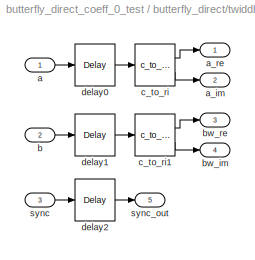
BLOCK [SubSystem] butterfly_direct/twiddle
  AncestorBlock = casper_library_ffts_twiddle/twiddle_coeff_0
  FunctionWithSeparateData = off
  MaskCallbackString = ||||||
  MaskDescription = Used in FFT library. Used when coefficients \nare 2^0 (just pass data through) but latency\nmust be the same as for a full twiddle.
  MaskEnableString = on,on,on,on,on,on,on
  MaskHideContents = off
  MaskIconFrame = on
  MaskIconOpaque = on
  MaskIconRotate = none
  MaskIconUnits = autoscale
  MaskInitialization = set_param(gcb,'LinkStatus','inactive');\nif(strcmp(opt_target, 'logic')), \n    latency = 'mult_latency+add_latency+bram_latency+conv_latency';\nelse,\n    latency = 'mult_latency+add_latency*2+bram_latency+conv_latency';\nend\nset_param([gcb,'/delay0'], 'latency', latency);\nset_param([gcb,'/delay1'], 'latency', latency);\nset_param([gcb,'/delay2'], 'latency', latency);
  MaskPromptString = FFT Size (2^?)|Input Bit Width|Add Latency|Mult Latency|BRAM Latency|Convert latency|Use less
  MaskSelfModifiable = on
  MaskStyleString = edit,edit,edit,edit,edit,edit,popup(logic|multipliers)
  MaskTabNameString = ,,,,,,
  MaskToolTipString = on,on,on,on,on,on,on
  MaskTunableValueString = on,on,on,on,on,on,on
  MaskType = twiddle_coeff_0
  MaskValueString = 5|5|2|3|2|1|multipliers
  MaskVarAliasString = ,,,,,,
  MaskVariables = FFTSize=@1;input_bit_width=@2;add_latency=@3;mult_latency=@4;bram_latency=@5;conv_latency=@6;opt_target=&7;
  MaskVisibilityString = on,on,on,on,on,on,on
  MinAlgLoopOccurrences = off
  Opaque = off
  Ports = [3, 5]
  PropExecContextOutsideSubsystem = off
  RTWSystemCode = Auto
  RequestExecContextInheritance = off
BLOCK [Inport] butterfly_direct/twiddle/a
  IconDisplay = Port number
  OutDataType = sfix(16)
  OutScaling = 2^0
BLOCK [Outport] butterfly_direct/twiddle/a_im
  IconDisplay = Port number
  OutDataType = sfix(16)
  OutScaling = 2^0
  Port = 2
BLOCK [Outport] butterfly_direct/twiddle/a_re
  IconDisplay = Port number
  OutDataType = sfix(16)
  OutScaling = 2^0
BLOCK [Inport] butterfly_direct/twiddle/b
  IconDisplay = Port number
  OutDataType = sfix(16)
  OutScaling = 2^0
  Port = 2
BLOCK [Outport] butterfly_direct/twiddle/bw_im
  IconDisplay = Port number
  OutDataType = sfix(16)
  OutScaling = 2^0
  Port = 4
BLOCK [Outport] butterfly_direct/twiddle/bw_re
  IconDisplay = Port number
  OutDataType = sfix(16)
  OutScaling = 2^0
  Port = 3
BLOCK [Reference] butterfly_direct/twiddle/c_to_ri  REF=casper_library_misc/c_to_ri  (lib defined in mdl_357510c33b49, mdl_57b5f564ae26, +4 more)
  AttributesFormatString = 5_4 r/i
  FunctionWithSeparateData = off
  Ports = [1, 2]
  RTWMemSecDataConstants = Inherit from model
  RTWMemSecDataInternal = Inherit from model
  RTWMemSecDataParameters = Inherit from model
  RTWMemSecFuncExecute = Inherit from model
  RTWMemSecFuncInitTerm = Inherit from model
  ShowPortLabels = FromPortIcon
  SourceBlock = casper_library_misc/c_to_ri
  SourceType = c_to_ri
  SystemSampleTime = -1
  UserData = DataTag8
  UserDataPersistent = on
  bin_pt = input_bit_width-1
  n_bits = input_bit_width
BLOCK [Reference] butterfly_direct/twiddle/c_to_ri1  REF=casper_library_misc/c_to_ri  (lib defined in mdl_357510c33b49, mdl_57b5f564ae26, +4 more)
  AttributesFormatString = 5_4 r/i
  FunctionWithSeparateData = off
  Ports = [1, 2]
  RTWMemSecDataConstants = Inherit from model
  RTWMemSecDataInternal = Inherit from model
  RTWMemSecDataParameters = Inherit from model
  RTWMemSecFuncExecute = Inherit from model
  RTWMemSecFuncInitTerm = Inherit from model
  ShowPortLabels = FromPortIcon
  SourceBlock = casper_library_misc/c_to_ri
  SourceType = c_to_ri
  SystemSampleTime = -1
  UserData = DataTag9
  UserDataPersistent = on
  bin_pt = input_bit_width-1
  n_bits = input_bit_width
BLOCK [Reference] butterfly_direct/twiddle/delay0  REF=xbsIndex_r4/Delay
  Ports = [1, 1]
  SourceBlock = xbsIndex_r4/Delay
  SourceType = Xilinx Delay Block
  block_type = delay
  block_version = 10.1.3
  dbl_ovrd = off
  en = off
  has_advanced_control = 0
  infoedit = Hardware notes: A delay line is a chain, each link of which is an SRL16 followed by a flip-flop.
  latency = mult_latency+add_latency*2+bram_latency+conv_latency
  reg_retiming = on
  sg_icon_stat = 40,42,1,1,white,blue,0,8c471295,right,
  sg_mask_display = fprintf('','COMMENT: begin icon graphics');\npatch([0 1 1 0 ],[0 0 1 1 ],[0.77 0.82 0.91]);\npatch([0.25 0.075 0.3 0.075 0.25 0.525 0.6 0.675 0.95 0.725 0.5 0.35 0.6 0.35 0.5 0.725 0.95 0.675 0.6 0.525 0.25 ],[0.119048 0.285714 0.5 0.714286 0.880952 0.880952 0.809524 0.880952 0.880952 0.666667 0.880952 0.738095 0.5 0.261905 0.119048 0.333333 0.119048 0.119048 0.190476 0.119048 0.119048 ],[0.98 0.9...<+216ch>  <repeated x3 — deduplicated; at blocks: delay0, delay1, delay2>
  sggui_pos = 31,321,419,315
  xl_area = [0,0,0,0,0,0,0]
  xl_use_area = off
BLOCK [Reference] butterfly_direct/twiddle/delay1  REF=xbsIndex_r4/Delay
  Ports = [1, 1]
  SourceBlock = xbsIndex_r4/Delay
  SourceType = Xilinx Delay Block
  block_type = delay
  block_version = 10.1.3
  dbl_ovrd = off
  en = off
  has_advanced_control = 0
  infoedit = Hardware notes: A delay line is a chain, each link of which is an SRL16 followed by a flip-flop.
  latency = mult_latency+add_latency*2+bram_latency+conv_latency
  reg_retiming = on
  sg_icon_stat = 40,42,1,1,white,blue,0,8c471295,right,
  sggui_pos = 24,132,419,315
  xl_area = [0,0,0,0,0,0,0]
  xl_use_area = off
BLOCK [Reference] butterfly_direct/twiddle/delay2  REF=xbsIndex_r4/Delay
  Ports = [1, 1]
  SourceBlock = xbsIndex_r4/Delay
  SourceType = Xilinx Delay Block
  block_type = delay
  block_version = 10.1.3
  dbl_ovrd = off
  en = off
  has_advanced_control = 0
  infoedit = Hardware notes: A delay line is a chain, each link of which is an SRL16 followed by a flip-flop.
  latency = mult_latency+add_latency*2+bram_latency+conv_latency
  reg_retiming = on
  sg_icon_stat = 40,42,1,1,white,blue,0,8c471295,right,
  sggui_pos = 21,51,419,315
  xl_area = [0,0,0,0,0,0,0]
  xl_use_area = off
BLOCK [Inport] butterfly_direct/twiddle/sync
  IconDisplay = Port number
  OutDataType = sfix(16)
  OutScaling = 2^0
  Port = 3
BLOCK [Outport] butterfly_direct/twiddle/sync_out
  IconDisplay = Port number
  OutDataType = sfix(16)
  OutScaling = 2^0
  Port = 5
BLOCK [Reference] c_to_ri  REF=casper_library_misc/c_to_ri  (lib defined in mdl_357510c33b49, mdl_57b5f564ae26, +4 more)
  AttributesFormatString = 5_4 r/i
  FunctionWithSeparateData = off
  Ports = [1, 2]
  RTWMemSecDataConstants = Inherit from model
  RTWMemSecDataInternal = Inherit from model
  RTWMemSecDataParameters = Inherit from model
  RTWMemSecFuncExecute = Inherit from model
  RTWMemSecFuncInitTerm = Inherit from model
  ShowPortLabels = FromPortIcon
  SourceBlock = casper_library_misc/c_to_ri
  SourceType = c_to_ri
  SystemSampleTime = -1
  UserData = DataTag10
  UserDataPersistent = on
  bin_pt = 4
  n_bits = 5
BLOCK [Reference] c_to_ri1  REF=casper_library_misc/c_to_ri  (lib defined in mdl_357510c33b49, mdl_57b5f564ae26, +4 more)
  AttributesFormatString = 5_4 r/i
  FunctionWithSeparateData = off
  Ports = [1, 2]
  RTWMemSecDataConstants = Inherit from model
  RTWMemSecDataInternal = Inherit from model
  RTWMemSecDataParameters = Inherit from model
  RTWMemSecFuncExecute = Inherit from model
  RTWMemSecFuncInitTerm = Inherit from model
  ShowPortLabels = FromPortIcon
  SourceBlock = casper_library_misc/c_to_ri
  SourceType = c_to_ri
  SystemSampleTime = -1
  UserData = DataTag11
  UserDataPersistent = on
  bin_pt = 4
  n_bits = 5
BLOCK [Reference] ri_to_c  REF=casper_library_misc/ri_to_c  (lib defined in mdl_357510c33b49, mdl_57b5f564ae26, +4 more)
  FunctionWithSeparateData = off
  Ports = [2, 1]
  RTWMemSecDataConstants = Inherit from model
  RTWMemSecDataInternal = Inherit from model
  RTWMemSecDataParameters = Inherit from model
  RTWMemSecFuncExecute = Inherit from model
  RTWMemSecFuncInitTerm = Inherit from model
  ShowPortLabels = FromPortIcon
  SourceBlock = casper_library_misc/ri_to_c
  SourceType = ri_to_c
  SystemSampleTime = -1
  UserData = DataTag12
  UserDataPersistent = on
LINE Demux:1 -> Scope:7
LINE Demux:2 -> Scope:8
LINE Demux:3 -> Scope1:7
LINE Demux:4 -> Scope1:8
LINE Demux:5 -> Scope:11
NET Demux:6 -> Scope1:9, Scope:9
LINE From File:1 -> Demux:1
NET Gateway In1:1 -> Gateway Out9:1, butterfly_direct:4
NET Gateway In2:1 -> Gateway Out8:1, butterfly_direct:3
NET Gateway In:1 -> Gateway Out7:1, ri_to_c:1, ri_to_c:2
NET Gateway Out1:1 -> Mux:2, Scope:5
NET Gateway Out2:1 -> Mux:3, Scope1:4
NET Gateway Out3:1 -> Mux:4, Scope1:5
NET Gateway Out4:1 -> Mux:5, Scope:10
NET Gateway Out6:1 -> Mux:6, Scope1:6, Scope:6
NET Gateway Out7:1 -> Scope1:1, Scope:1
NET Gateway Out8:1 -> Scope1:2, Scope:2
NET Gateway Out9:1 -> Scope1:3, Scope:3
NET Gateway Out:1 -> Mux:1, Scope:4
LINE Mux:1 -> To File:1
LINE Pulse\nGenerator1:1 -> Gateway In1:1
LINE Pulse\nGenerator:1 -> Gateway In2:1
LINE Ramp:1 -> Gateway In:1
NET butterfly_direct/AddSub1:1 -> butterfly_direct/Mux1:2, butterfly_direct/Scale1:1
NET butterfly_direct/AddSub2:1 -> butterfly_direct/Mux2:2, butterfly_direct/Scale2:1
NET butterfly_direct/AddSub3:1 -> butterfly_direct/Mux3:2, butterfly_direct/Scale3:1
NET butterfly_direct/AddSub:1 -> butterfly_direct/Mux:2, butterfly_direct/Scale:1
NET butterfly_direct/Delay3:1 -> butterfly_direct/Mux1:1, butterfly_direct/Mux2:1, butterfly_direct/Mux3:1, butterfly_direct/Mux:1
LINE butterfly_direct/Delay:1 -> butterfly_direct/sync_out:1
LINE butterfly_direct/Logical:1 -> butterfly_direct/of:1
LINE butterfly_direct/Mux1:1 -> butterfly_direct/convert_of2:1
LINE butterfly_direct/Mux2:1 -> butterfly_direct/convert_of3:1
LINE butterfly_direct/Mux3:1 -> butterfly_direct/convert_of4:1
LINE butterfly_direct/Mux:1 -> butterfly_direct/convert_of1:1
LINE butterfly_direct/Scale1:1 -> butterfly_direct/Mux1:3
LINE butterfly_direct/Scale2:1 -> butterfly_direct/Mux2:3
LINE butterfly_direct/Scale3:1 -> butterfly_direct/Mux3:3
LINE butterfly_direct/Scale:1 -> butterfly_direct/Mux:3
LINE butterfly_direct/a:1 -> butterfly_direct/twiddle:1
LINE butterfly_direct/b:1 -> butterfly_direct/twiddle:2
LINE butterfly_direct/convert_of1/all_0s:1 -> butterfly_direct/convert_of1/and:1
LINE butterfly_direct/convert_of1/all_1s:1 -> butterfly_direct/convert_of1/and:2
LINE butterfly_direct/convert_of1/and:1 -> butterfly_direct/convert_of1/of:1
LINE butterfly_direct/convert_of1/convert:1 -> butterfly_direct/convert_of1/dout:1
NET butterfly_direct/convert_of1/din:1 -> butterfly_direct/convert_of1/convert:1, butterfly_direct/convert_of1/slice1:1, butterfly_direct/convert_of1/slice2:1
LINE butterfly_direct/convert_of1/invert1:1 -> butterfly_direct/convert_of1/all_0s:1
LINE butterfly_direct/convert_of1/invert2:1 -> butterfly_direct/convert_of1/all_0s:2
NET butterfly_direct/convert_of1/slice1:1 -> butterfly_direct/convert_of1/all_1s:1, butterfly_direct/convert_of1/invert1:1
NET butterfly_direct/convert_of1/slice2:1 -> butterfly_direct/convert_of1/all_1s:2, butterfly_direct/convert_of1/invert2:1
LINE butterfly_direct/convert_of1:1 -> butterfly_direct/ri_to_c:1
LINE butterfly_direct/convert_of1:2 -> butterfly_direct/Logical:1
LINE butterfly_direct/convert_of2/all_0s:1 -> butterfly_direct/convert_of2/and:1
LINE butterfly_direct/convert_of2/all_1s:1 -> butterfly_direct/convert_of2/and:2
LINE butterfly_direct/convert_of2/and:1 -> butterfly_direct/convert_of2/of:1
LINE butterfly_direct/convert_of2/convert:1 -> butterfly_direct/convert_of2/dout:1
NET butterfly_direct/convert_of2/din:1 -> butterfly_direct/convert_of2/convert:1, butterfly_direct/convert_of2/slice1:1, butterfly_direct/convert_of2/slice2:1
LINE butterfly_direct/convert_of2/invert1:1 -> butterfly_direct/convert_of2/all_0s:1
LINE butterfly_direct/convert_of2/invert2:1 -> butterfly_direct/convert_of2/all_0s:2
NET butterfly_direct/convert_of2/slice1:1 -> butterfly_direct/convert_of2/all_1s:1, butterfly_direct/convert_of2/invert1:1
NET butterfly_direct/convert_of2/slice2:1 -> butterfly_direct/convert_of2/all_1s:2, butterfly_direct/convert_of2/invert2:1
LINE butterfly_direct/convert_of2:1 -> butterfly_direct/ri_to_c:2
LINE butterfly_direct/convert_of2:2 -> butterfly_direct/Logical:2
LINE butterfly_direct/convert_of3/all_0s:1 -> butterfly_direct/convert_of3/and:1
LINE butterfly_direct/convert_of3/all_1s:1 -> butterfly_direct/convert_of3/and:2
LINE butterfly_direct/convert_of3/and:1 -> butterfly_direct/convert_of3/of:1
LINE butterfly_direct/convert_of3/convert:1 -> butterfly_direct/convert_of3/dout:1
NET butterfly_direct/convert_of3/din:1 -> butterfly_direct/convert_of3/convert:1, butterfly_direct/convert_of3/slice1:1, butterfly_direct/convert_of3/slice2:1
LINE butterfly_direct/convert_of3/invert1:1 -> butterfly_direct/convert_of3/all_0s:1
LINE butterfly_direct/convert_of3/invert2:1 -> butterfly_direct/convert_of3/all_0s:2
NET butterfly_direct/convert_of3/slice1:1 -> butterfly_direct/convert_of3/all_1s:1, butterfly_direct/convert_of3/invert1:1
NET butterfly_direct/convert_of3/slice2:1 -> butterfly_direct/convert_of3/all_1s:2, butterfly_direct/convert_of3/invert2:1
LINE butterfly_direct/convert_of3:1 -> butterfly_direct/ri_to_c1:1
LINE butterfly_direct/convert_of3:2 -> butterfly_direct/Logical:3
LINE butterfly_direct/convert_of4/all_0s:1 -> butterfly_direct/convert_of4/and:1
LINE butterfly_direct/convert_of4/all_1s:1 -> butterfly_direct/convert_of4/and:2
LINE butterfly_direct/convert_of4/and:1 -> butterfly_direct/convert_of4/of:1
LINE butterfly_direct/convert_of4/convert:1 -> butterfly_direct/convert_of4/dout:1
NET butterfly_direct/convert_of4/din:1 -> butterfly_direct/convert_of4/convert:1, butterfly_direct/convert_of4/slice1:1, butterfly_direct/convert_of4/slice2:1
LINE butterfly_direct/convert_of4/invert1:1 -> butterfly_direct/convert_of4/all_0s:1
LINE butterfly_direct/convert_of4/invert2:1 -> butterfly_direct/convert_of4/all_0s:2
NET butterfly_direct/convert_of4/slice1:1 -> butterfly_direct/convert_of4/all_1s:1, butterfly_direct/convert_of4/invert1:1
NET butterfly_direct/convert_of4/slice2:1 -> butterfly_direct/convert_of4/all_1s:2, butterfly_direct/convert_of4/invert2:1
LINE butterfly_direct/convert_of4:1 -> butterfly_direct/ri_to_c1:2
LINE butterfly_direct/convert_of4:2 -> butterfly_direct/Logical:4
LINE butterfly_direct/ri_to_c1:1 -> butterfly_direct/a-bw:1
LINE butterfly_direct/ri_to_c:1 -> butterfly_direct/a+bw:1
LINE butterfly_direct/shift:1 -> butterfly_direct/Delay3:1
LINE butterfly_direct/sync:1 -> butterfly_direct/twiddle:3
LINE butterfly_direct/twiddle/a:1 -> butterfly_direct/twiddle/delay0:1
LINE butterfly_direct/twiddle/b:1 -> butterfly_direct/twiddle/delay1:1
LINE butterfly_direct/twiddle/c_to_ri1:1 -> butterfly_direct/twiddle/bw_re:1
LINE butterfly_direct/twiddle/c_to_ri1:2 -> butterfly_direct/twiddle/bw_im:1
LINE butterfly_direct/twiddle/c_to_ri:1 -> butterfly_direct/twiddle/a_re:1
LINE butterfly_direct/twiddle/c_to_ri:2 -> butterfly_direct/twiddle/a_im:1
LINE butterfly_direct/twiddle/delay0:1 -> butterfly_direct/twiddle/c_to_ri:1
LINE butterfly_direct/twiddle/delay1:1 -> butterfly_direct/twiddle/c_to_ri1:1
LINE butterfly_direct/twiddle/delay2:1 -> butterfly_direct/twiddle/sync_out:1
LINE butterfly_direct/twiddle/sync:1 -> butterfly_direct/twiddle/delay2:1
NET butterfly_direct/twiddle:1 -> butterfly_direct/AddSub2:1, butterfly_direct/AddSub:1
NET butterfly_direct/twiddle:2 -> butterfly_direct/AddSub1:1, butterfly_direct/AddSub3:1
NET butterfly_direct/twiddle:3 -> butterfly_direct/AddSub2:2, butterfly_direct/AddSub:2
NET butterfly_direct/twiddle:4 -> butterfly_direct/AddSub1:2, butterfly_direct/AddSub3:2
LINE butterfly_direct/twiddle:5 -> butterfly_direct/Delay:1
LINE butterfly_direct:1 -> c_to_ri:1
LINE butterfly_direct:2 -> c_to_ri1:1
LINE butterfly_direct:3 -> Gateway Out4:1
LINE butterfly_direct:4 -> Gateway Out6:1
LINE c_to_ri1:1 -> Gateway Out2:1
LINE c_to_ri1:2 -> Gateway Out3:1
LINE c_to_ri:1 -> Gateway Out:1
LINE c_to_ri:2 -> Gateway Out1:1
NET ri_to_c:1 -> butterfly_direct:1, butterfly_direct:2
note: NET lines group one-source signal fan-out (src -> all destinations, sorted); 1:1 wires keep LINE
